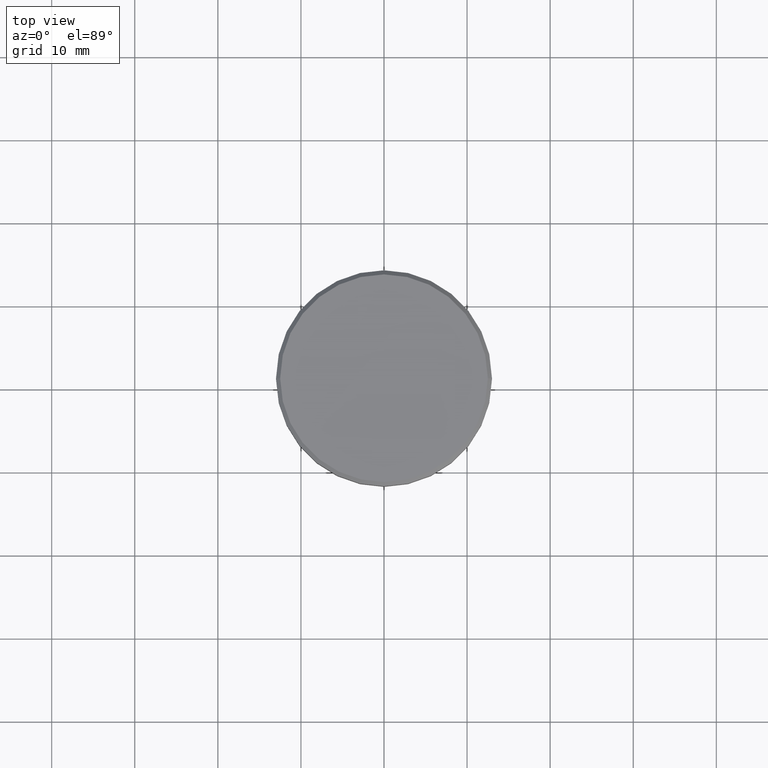
[diagram: clean part render]
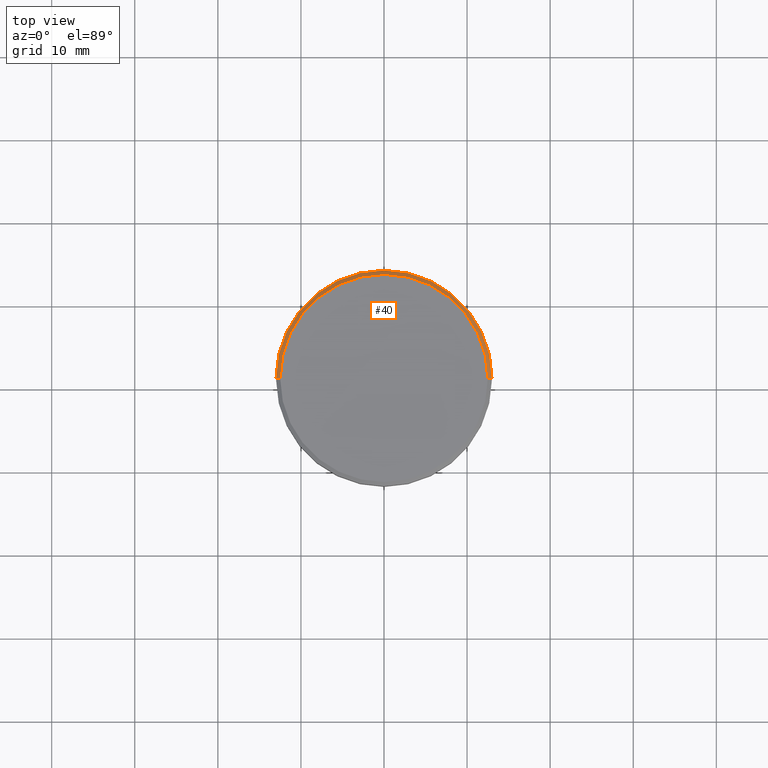
[diagram: same view with one face highlighted and labeled with its STEP entity id]
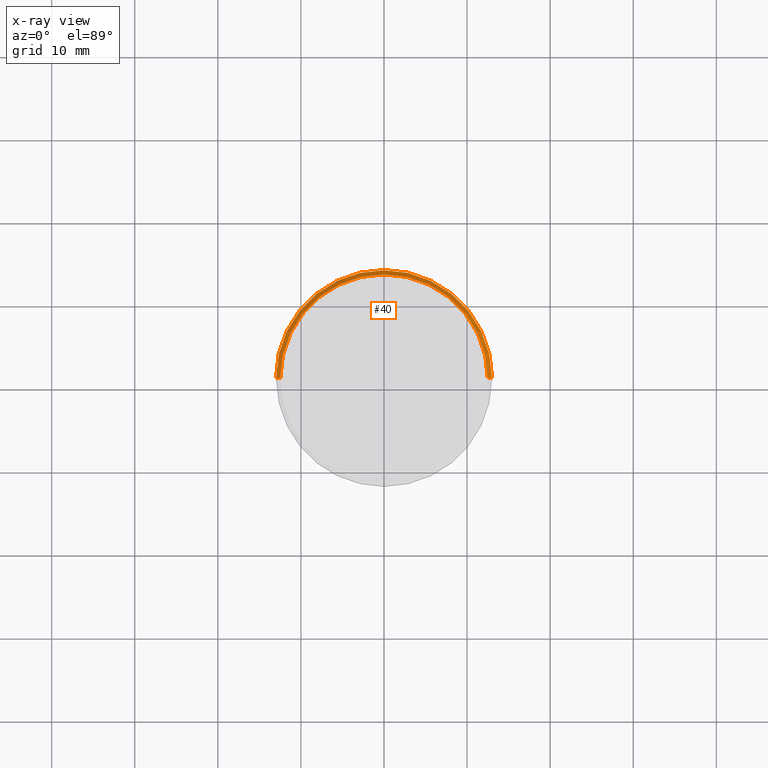
[diagram: x-ray of the same camera — body ghosted, the highlighted face saturated]
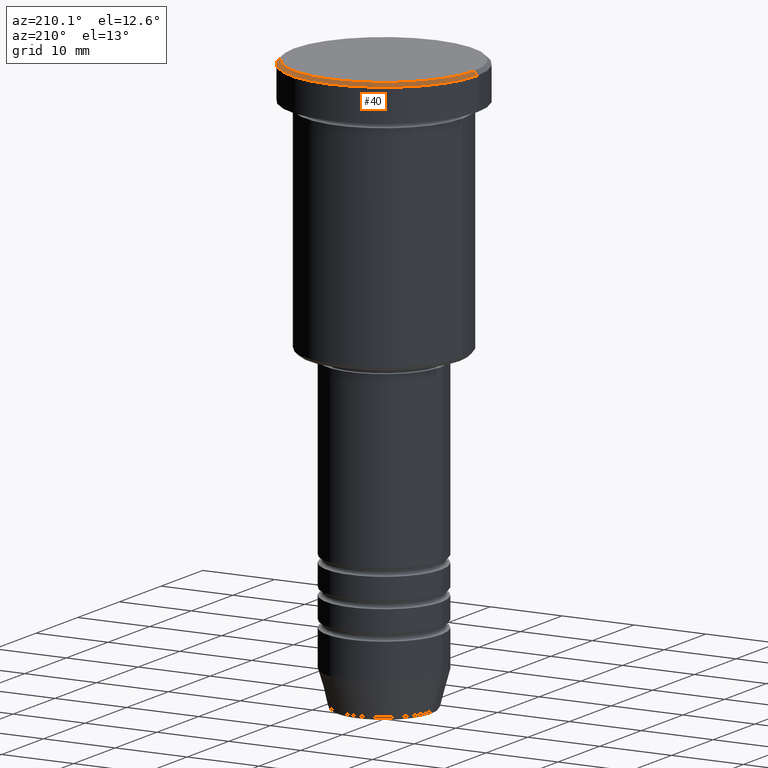
[diagram: same view with one face highlighted and labeled with its STEP entity id]
A machine part, top view. The second image highlights one B-rep face of the part: STEP entity #40.
The next image is the same camera in x-ray: the body ghosted, the highlighted face saturated — about 0% of this face is hidden behind the body in this view.
A second angle (auxiliary view) of the same face is appended — the face is thin or edge-on in the first view.
In plain terms, the highlighted conical surface has half-angle 45 deg.
Its self-contained STEP definition (entity closure, byte-faithful):
#5 = ORIENTED_EDGE ( 'NONE', *, *, #261, .T. ) ;
#29 = CARTESIAN_POINT ( 'NONE',  ( -12.50000000000002487, 0.000000000000000000, 0.000000000000000000 ) ) ;
#40 = ADVANCED_FACE ( 'NONE', ( #960 ), #274, .T. ) ;
#60 = ORIENTED_EDGE ( 'NONE', *, *, #127, .F. ) ;
#64 = VERTEX_POINT ( 'NONE', #338 ) ;
#77 = VERTEX_POINT ( 'NONE', #1066 ) ;
#81 = CARTESIAN_POINT ( 'NONE',  ( 12.50000000000002487, 1.530808498934194480E-15, 0.000000000000000000 ) ) ;
#82 = EDGE_LOOP ( 'NONE', ( #60, #5, #888, #556 ) ) ;
#83 = DIRECTION ( 'NONE',  ( 0.000000000000000000, 0.000000000000000000, -1.000000000000000000 ) ) ;
#127 = EDGE_CURVE ( 'NONE', #537, #64, #887, .T. ) ;
#141 = DIRECTION ( 'NONE',  ( 0.000000000000000000, 0.000000000000000000, -1.000000000000000000 ) ) ;
#144 = CARTESIAN_POINT ( 'NONE',  ( 13.00000000000000000, 0.000000000000000000, -0.4999999999999796274 ) ) ;
#194 = DIRECTION ( 'NONE',  ( -0.7071067811865439090, 0.000000000000000000, -0.7071067811865512365 ) ) ;
#224 = CARTESIAN_POINT ( 'NONE',  ( 12.50000000000002487, 1.561424668912876886E-15, 0.000000000000000000 ) ) ;
#240 = AXIS2_PLACEMENT_3D ( 'NONE', #900, #83, #312 ) ;
#259 = CIRCLE ( 'NONE', #240, 13.00000000000000000 ) ;
#261 = EDGE_CURVE ( 'NONE', #537, #980, #740, .T. ) ;
#274 = CONICAL_SURFACE ( 'NONE', #1073, 12.50000000000002487, 0.7853981633974431720 ) ;
#312 = DIRECTION ( 'NONE',  ( 1.000000000000000000, 0.000000000000000000, 0.000000000000000000 ) ) ;
#333 = DIRECTION ( 'NONE',  ( 1.000000000000000000, 0.000000000000000000, 0.000000000000000000 ) ) ;
#338 = CARTESIAN_POINT ( 'NONE',  ( -12.50000000000002487, 0.000000000000000000, 0.000000000000000000 ) ) ;
#399 = VECTOR ( 'NONE', #194, 1000.000000000000000 ) ;
#415 = DIRECTION ( 'NONE',  ( -0.000000000000000000, -0.000000000000000000, 1.000000000000000000 ) ) ;
#537 = VERTEX_POINT ( 'NONE', #224 ) ;
#556 = ORIENTED_EDGE ( 'NONE', *, *, #795, .F. ) ;
#665 = AXIS2_PLACEMENT_3D ( 'NONE', #866, #415, #333 ) ;
#704 = VECTOR ( 'NONE', #1104, 1000.000000000000000 ) ;
#740 = LINE ( 'NONE', #81, #704 ) ;
#775 = DIRECTION ( 'NONE',  ( -1.000000000000000000, 0.000000000000000000, 0.000000000000000000 ) ) ;
#795 = EDGE_CURVE ( 'NONE', #64, #77, #1014, .T. ) ;
#866 = CARTESIAN_POINT ( 'NONE',  ( 0.000000000000000000, 0.000000000000000000, 0.000000000000000000 ) ) ;
#876 = CARTESIAN_POINT ( 'NONE',  ( 0.000000000000000000, 0.000000000000000000, 0.000000000000000000 ) ) ;
#887 = CIRCLE ( 'NONE', #665, 12.50000000000002487 ) ;
#888 = ORIENTED_EDGE ( 'NONE', *, *, #959, .F. ) ;
#900 = CARTESIAN_POINT ( 'NONE',  ( 0.000000000000000000, 0.000000000000000000, -0.4999999999999796274 ) ) ;
#959 = EDGE_CURVE ( 'NONE', #77, #980, #259, .T. ) ;
#960 = FACE_OUTER_BOUND ( 'NONE', #82, .T. ) ;
#980 = VERTEX_POINT ( 'NONE', #144 ) ;
#1014 = LINE ( 'NONE', #29, #399 ) ;
#1066 = CARTESIAN_POINT ( 'NONE',  ( -13.00000000000000000, 1.592040838891559095E-15, -0.4999999999999796274 ) ) ;
#1073 = AXIS2_PLACEMENT_3D ( 'NONE', #876, #141, #775 ) ;
#1104 = DIRECTION ( 'NONE',  ( 0.7071067811865439090, 8.659560562354888485E-17, -0.7071067811865512365 ) ) ;